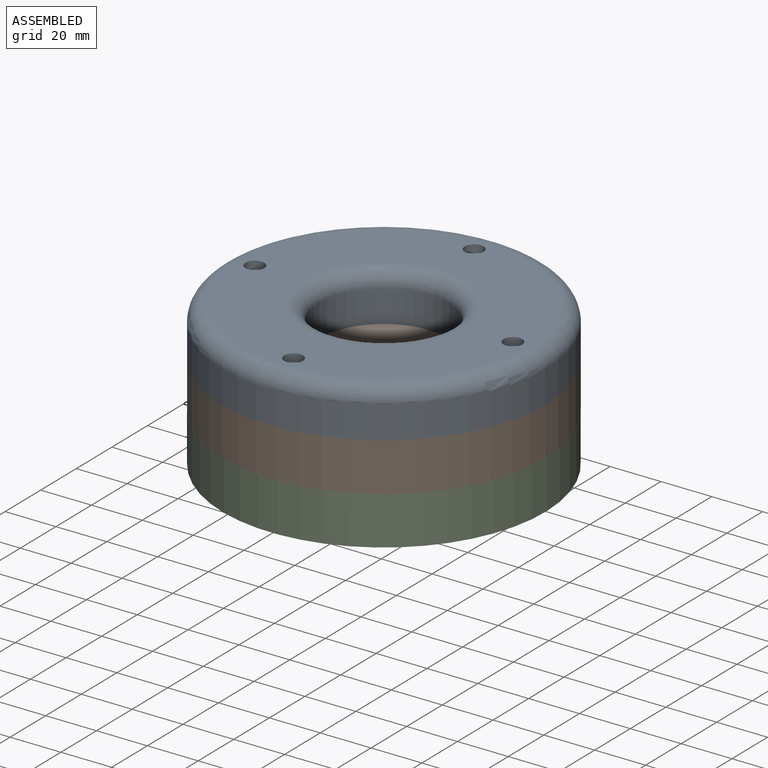
[diagram: assembled view]
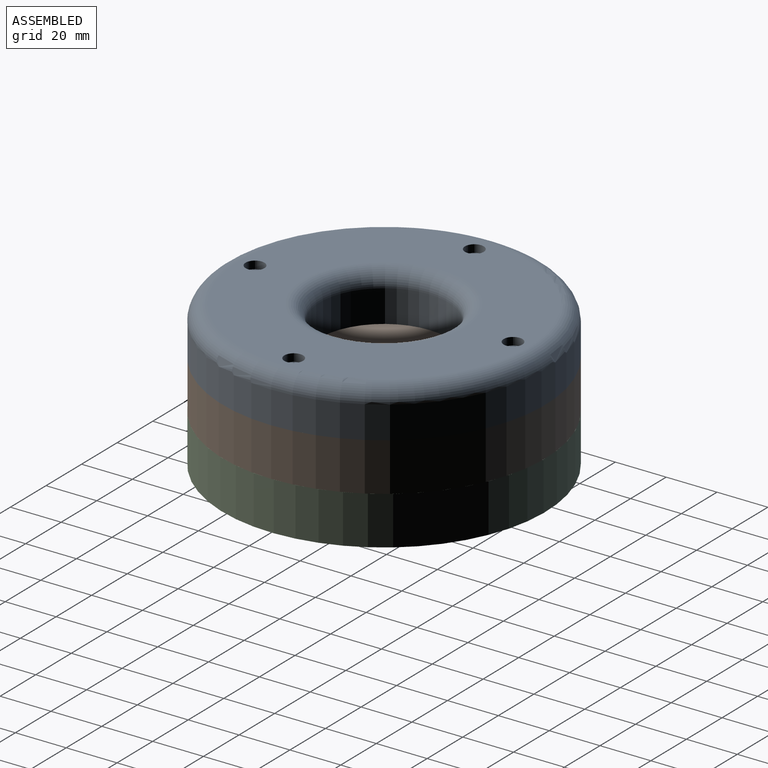
[diagram: assembled view, second angle]
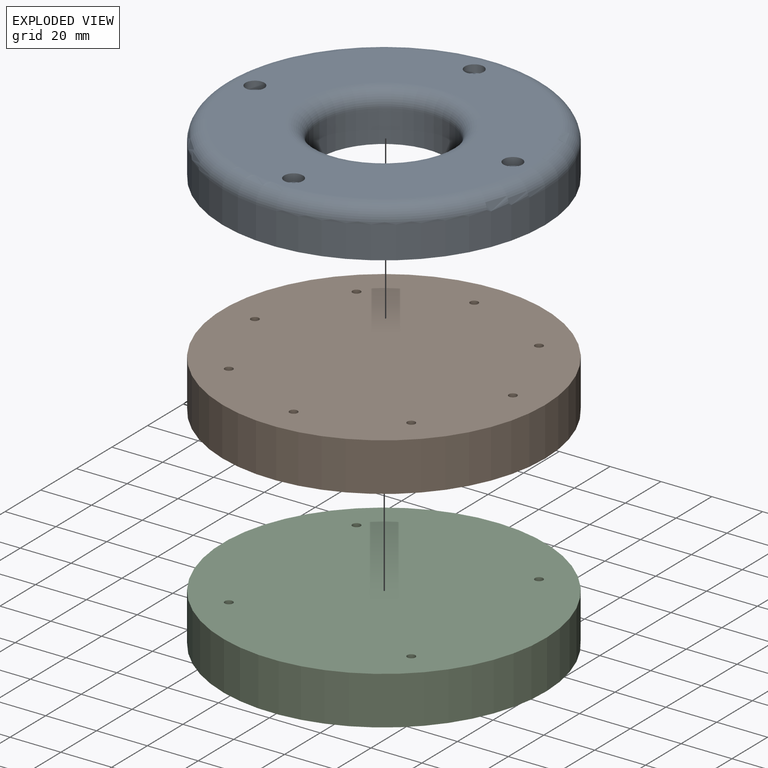
[diagram: exploded view]
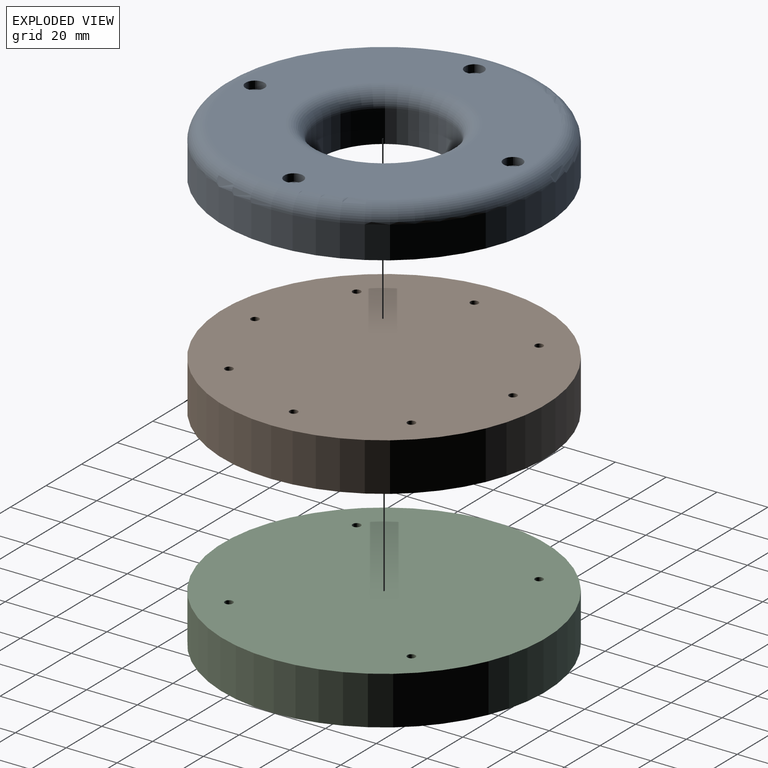
[diagram: exploded view, second angle]
ASSEMBLY  parts=3 mates=2
PART A: 18 faces, bbox 137.4x137.4x19.1 mm
  f0: cylinder r=25.38mm len=50.76mm, axis (0,0,-1), area 2025.3mm2, adj f7,f17
  f1: cylinder r=3.69mm len=7.38mm, axis (0,0,-1), area 70.7mm2, adj f6,f15
  f2: cylinder r=3.69mm len=7.38mm, axis (0,0,-1), area 70.7mm2, adj f6,f9
  f3: cylinder r=3.69mm len=7.38mm, axis (0,0,-1), area 70.7mm2, adj f6,f13
  f4: cylinder r=3.69mm len=7.38mm, axis (0,0,-1), area 70.7mm2, adj f6,f11
  f5: cylinder r=63.45mm len=126.91mm, axis (0,0,-1), area 5063.4mm2, adj f7,f16
  f6: plane 114.21x114.21mm, normal (0,0,1), area 6909.8mm2, adj f1,f2,f3,f4,f16,f17
  f7: plane 126.91x126.91mm, normal (0,0,-1), area 10593.6mm2, adj f0,f5,f8,f10,f12,f14
  f8: cylinder r=1.59mm len=16mm, axis (0,0,-1), area 159.5mm2, adj f7,f9
  f9: plane 7.38x7.38mm, normal (0,0,1), area 34.9mm2, adj f2,f8
  f10: cylinder r=1.59mm len=16mm, axis (0,0,-1), area 159.5mm2, adj f7,f11
  f11: plane 7.38x7.38mm, normal (0,0,1), area 34.9mm2, adj f4,f10
  f12: cylinder r=1.59mm len=16mm, axis (0,0,-1), area 159.5mm2, adj f7,f13
  f13: plane 7.38x7.38mm, normal (0,0,1), area 34.9mm2, adj f3,f12
  f14: cylinder r=1.59mm len=16mm, axis (0,0,-1), area 159.5mm2, adj f7,f15
  f15: plane 7.38x7.38mm, normal (0,0,1), area 34.9mm2, adj f1,f14
  f16: torus R=57.1mm, axis (0,0,1), area 3832.1mm2, adj f5,f6
  f17: torus R=31.73mm, axis (0,0,1), area 1735.3mm2, adj f0,f6
PART B: 11 faces, bbox 126.9x126.9x19.1 mm
  f0: cylinder r=1.59mm len=19.05mm, axis (0,0,-1), area 189.9mm2, adj f9,f10
  f1: cylinder r=1.59mm len=19.05mm, axis (0,0,-1), area 189.9mm2, adj f9,f10
  f2: cylinder r=1.59mm len=19.05mm, axis (0,0,-1), area 189.9mm2, adj f9,f10
  f3: cylinder r=63.45mm len=126.91mm, axis (0,0,-1), area 7595mm2, adj f9,f10
  f4: cylinder r=1.59mm len=19.05mm, axis (0,0,-1), area 189.9mm2, adj f9,f10
  f5: cylinder r=1.59mm len=19.05mm, axis (0,0,-1), area 189.9mm2, adj f9,f10
  f6: cylinder r=1.59mm len=19.05mm, axis (0,0,-1), area 189.9mm2, adj f9,f10
  f7: cylinder r=1.59mm len=19.05mm, axis (0,0,-1), area 189.9mm2, adj f9,f10
  f8: cylinder r=1.59mm len=19.05mm, axis (0,0,-1), area 189.9mm2, adj f9,f10
  f9: plane 126.91x126.91mm, normal (0,0,1), area 12585.9mm2, adj f0,f1,f2,f3,f4,f5,f6,f7
  f10: plane 126.91x126.91mm, normal (0,0,-1), area 12585.9mm2, adj f0,f1,f2,f3,f4,f5,f6,f7
PART C: 15 faces, bbox 126.9x126.9x19.1 mm
  f0: cylinder r=3.69mm len=7.38mm, axis (0,0,1), area 70.7mm2, adj f5,f14
  f1: cylinder r=3.69mm len=7.38mm, axis (0,0,1), area 70.7mm2, adj f5,f8
  f2: cylinder r=3.69mm len=7.38mm, axis (0,0,1), area 70.7mm2, adj f5,f12
  f3: cylinder r=3.69mm len=7.38mm, axis (0,0,1), area 70.7mm2, adj f5,f10
  f4: cylinder r=63.45mm len=126.91mm, axis (0,0,1), area 7595mm2, adj f5,f6
  f5: plane 126.91x126.91mm, normal (0,0,-1), area 12478mm2, adj f0,f1,f2,f3,f4
  f6: plane 126.91x126.91mm, normal (0,0,1), area 12617.5mm2, adj f4,f7,f9,f11,f13
  f7: cylinder r=1.59mm len=16mm, axis (0,0,1), area 159.5mm2, adj f6,f8
  f8: plane 7.38x7.38mm, normal (0,0,-1), area 34.9mm2, adj f1,f7
  f9: cylinder r=1.59mm len=16mm, axis (0,0,1), area 159.5mm2, adj f6,f10
  f10: plane 7.38x7.38mm, normal (0,0,-1), area 34.9mm2, adj f3,f9
  f11: cylinder r=1.59mm len=16mm, axis (0,0,1), area 159.5mm2, adj f6,f12
  f12: plane 7.38x7.38mm, normal (0,0,-1), area 34.9mm2, adj f2,f11
  f13: cylinder r=1.59mm len=16mm, axis (0,0,1), area 159.5mm2, adj f6,f14
  f14: plane 7.38x7.38mm, normal (0,0,-1), area 34.9mm2, adj f0,f13
PLACE A t=(-71.44,-71.12,58.4)mm
PLACE B t=(-74.64,-75.02,39.35)mm
PLACE C t=(-76.19,77.94,39.35)mm
MATE fastened A.f1 <-> B.f5  axis (0,0,-1) through (52.32,2.13,58.4)mm
MATE fastened B.f3 <-> C.f4  axis (0,0,-1) through (1.57,2.13,39.35)mm
